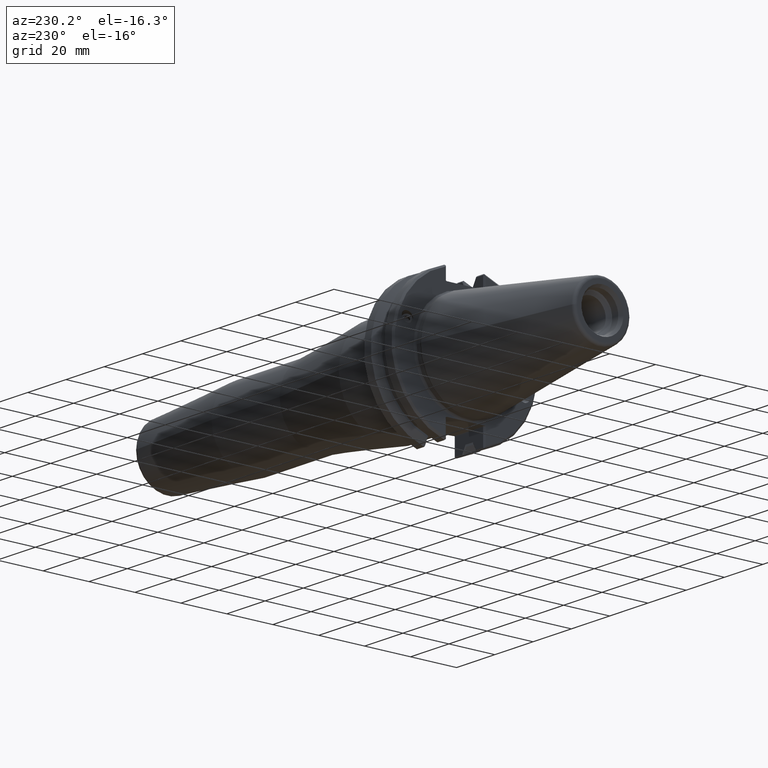
[diagram: clean part render]
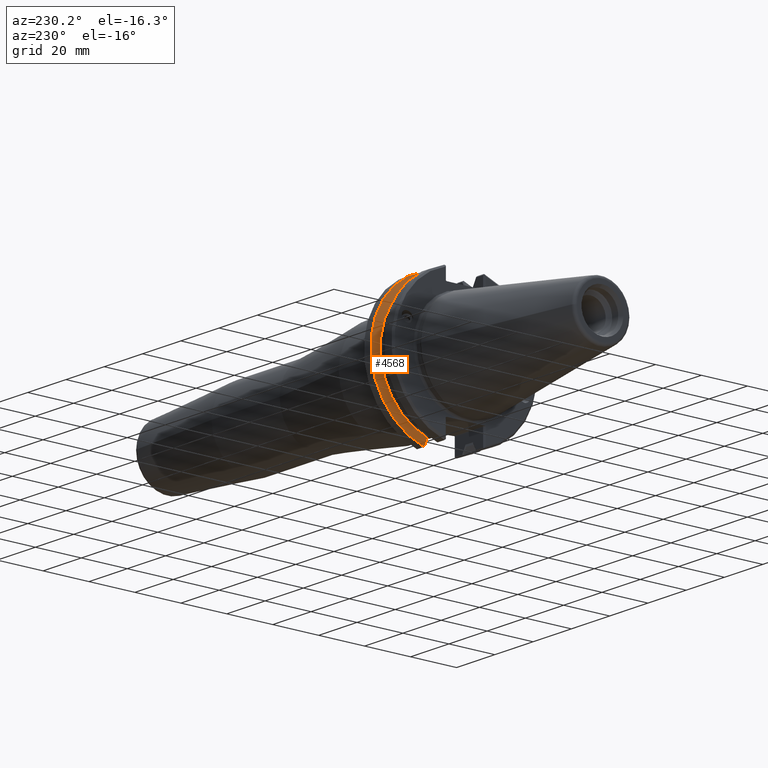
[diagram: same view with one face highlighted and labeled with its STEP entity id]
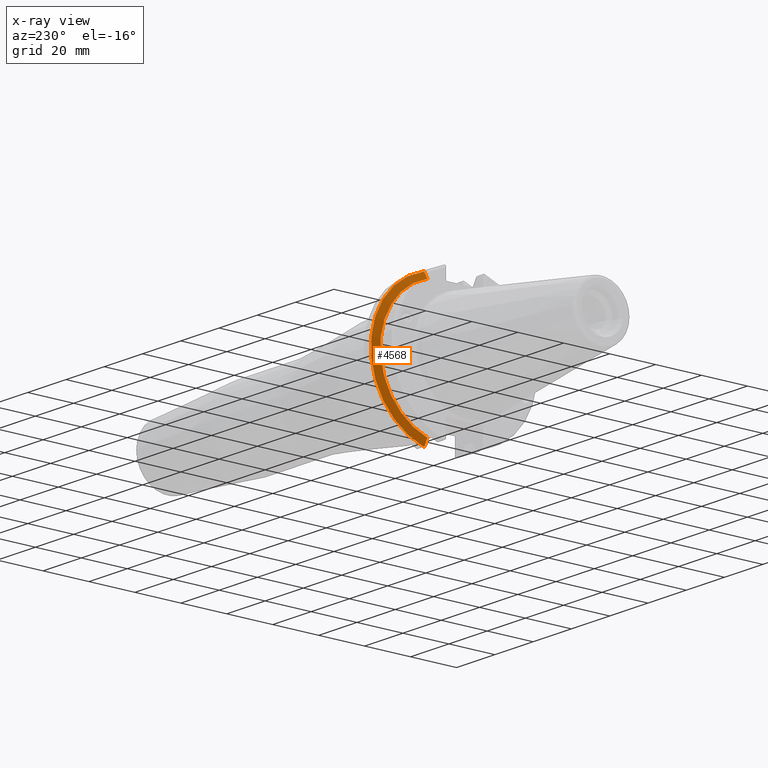
[diagram: x-ray of the same camera — body ghosted, the highlighted face saturated]
A machine part, auxiliary view. The second image highlights one B-rep face of the part: STEP entity #4568.
The next image is the same camera in x-ray: the body ghosted, the highlighted face saturated — about 0% of this face is hidden behind the body in this view.
In plain terms, the highlighted conical surface has half-angle 60 deg.
Its self-contained STEP definition (entity closure, byte-faithful):
#1130=CARTESIAN_POINT('',(14.660216354556951,8.626554713373395,-30.555605930453666));
#1131=VERTEX_POINT('',#1130);
#1138=CARTESIAN_POINT('',(14.660216354556951,8.626554713373386,30.555605930453666));
#1139=VERTEX_POINT('',#1138);
#1140=CARTESIAN_POINT('',(14.660216354556951,0.0,0.0));
#1141=DIRECTION('',(1.0,1.624514E-013,0.0));
#1142=DIRECTION('',(-1.624514E-013,1.0,0.0));
#1143=AXIS2_PLACEMENT_3D('',#1140,#1141,#1142);
#1144=CIRCLE('',#1143,31.750000000000000);
#1145=EDGE_CURVE('',#1131,#1139,#1144,.T.);
#1814=CARTESIAN_POINT('',(14.544091722932937,8.463425625241261,-30.392456096712323));
#1815=VERTEX_POINT('',#1814);
#1856=CARTESIAN_POINT('',(13.051789999522727,8.462002772180403,-27.700450872004421));
#1857=VERTEX_POINT('',#1856);
#1867=CARTESIAN_POINT('',(13.051789998835291,8.462002772016909,-27.700450872424739));
#1868=CARTESIAN_POINT('',(13.065816816280348,8.462013473377674,-27.725851088848145));
#1869=CARTESIAN_POINT('',(13.079844883125034,8.462024257716772,-27.751250569471267));
#1870=CARTESIAN_POINT('',(13.127402440379013,8.462061094522626,-27.837349092398661));
#1871=CARTESIAN_POINT('',(13.160937774719038,8.462087535366775,-27.898044693726515));
#1872=CARTESIAN_POINT('',(13.228224585542931,8.462141505129123,-28.019793641142886));
#1873=CARTESIAN_POINT('',(13.261976146739604,8.462169039683248,-28.080846937134829));
#1874=CARTESIAN_POINT('',(13.329697316756418,8.462225199855261,-28.203314731946612));
#1875=CARTESIAN_POINT('',(13.363667009475037,8.462253831067963,-28.264729181430621));
#1876=CARTESIAN_POINT('',(13.431826373285052,8.462312187597084,-28.387922785157617));
#1877=CARTESIAN_POINT('',(13.466016127476379,8.462341918477433,-28.449701890355751));
#1878=CARTESIAN_POINT('',(13.604060163826029,8.462463779160242,-28.699074315813498));
#1879=CARTESIAN_POINT('',(13.707970484976675,8.462559662653849,-28.886634617915366));
#1880=CARTESIAN_POINT('',(13.882322969722512,8.462727170438757,-29.201105756533980));
#1881=CARTESIAN_POINT('',(13.952732933144294,8.462796625645805,-29.328035578665379));
#1882=CARTESIAN_POINT('',(14.058714552887526,8.462903801797822,-29.518996804611778));
#1883=CARTESIAN_POINT('',(14.094266641151645,8.462940199917405,-29.583039750684510));
#1884=CARTESIAN_POINT('',(14.165605032929319,8.463014114277971,-29.711516061398846));
#1885=CARTESIAN_POINT('',(14.201391418522643,8.463051636072166,-29.775949377706283));
#1886=CARTESIAN_POINT('',(14.273200547156113,8.463127801649854,-29.905210281852288));
#1887=CARTESIAN_POINT('',(14.309223371688597,8.463166450969457,-29.970037821357533));
#1888=CARTESIAN_POINT('',(14.411510675269442,8.463277427413670,-30.154072514432158));
#1889=CARTESIAN_POINT('',(14.477790598008076,8.463350803919834,-30.273270556839574));
#1890=CARTESIAN_POINT('',(14.544091722932942,8.463425625241680,-30.392456096712227));
#1891=B_SPLINE_CURVE_WITH_KNOTS('',3,(#1867,#1868,#1869,#1870,#1871,#1872,#1873,#1874,#1875,#1876,#1877,#1878,#1879,#1880,#1881,#1882,#1883,#1884,#1885,#1886,#1887,#1888,#1889,#1890),.UNSPECIFIED.,.F.,.U.,(4,2,2,2,2,2,2,2,2,2,2,4),(-0.266790668117900,-0.258089161817484,-0.237293672558449,-0.216372800269911,-0.195325359856532,-0.174150151868467,-0.109845707832232,-0.066314583709057,-0.044346748746016,-0.022242328460205,0.0,0.040903700554940),.UNSPECIFIED.);
#1892=EDGE_CURVE('',#1857,#1815,#1891,.T.);
#1928=CARTESIAN_POINT('',(13.051789999906136,8.462002772083187,27.700450872381310));
#1929=VERTEX_POINT('',#1928);
#1939=CARTESIAN_POINT('',(13.051789999999379,7.664949E-012,0.0));
#1940=DIRECTION('',(-1.0,-1.624821E-013,0.0));
#1941=DIRECTION('',(-1.624821E-013,1.0,0.0));
#1942=AXIS2_PLACEMENT_3D('',#1939,#1940,#1941);
#1943=CIRCLE('',#1942,28.964123833674531);
#1944=EDGE_CURVE('',#1929,#1857,#1943,.T.);
#2817=CARTESIAN_POINT('',(14.544091722932935,8.463425625240813,30.392456096712444));
#2818=VERTEX_POINT('',#2817);
#2828=CARTESIAN_POINT('',(14.544091722932937,8.463425625240966,30.392456096712408));
#2829=CARTESIAN_POINT('',(14.477790598008012,8.463350803919129,30.273270556839648));
#2830=CARTESIAN_POINT('',(14.411510675269309,8.463277427412969,30.154072514432105));
#2831=CARTESIAN_POINT('',(14.309223371688997,8.463166450968769,29.970037821358439));
#2832=CARTESIAN_POINT('',(14.273200547157101,8.463127801649174,29.905210281854252));
#2833=CARTESIAN_POINT('',(14.201391418524707,8.463051636071491,29.775949377710184));
#2834=CARTESIAN_POINT('',(14.165605032931870,8.463014114277300,29.711516061403628));
#2835=CARTESIAN_POINT('',(14.094266641155073,8.462940199916744,29.583039750690872));
#2836=CARTESIAN_POINT('',(14.058714552891329,8.462903801797165,29.518996804618812));
#2837=CARTESIAN_POINT('',(13.952732933148930,8.462796625645165,29.328035578673919));
#2838=CARTESIAN_POINT('',(13.882322969727587,8.462727170438127,29.201105756543310));
#2839=CARTESIAN_POINT('',(13.707970484982051,8.462559662653241,28.886634617925232));
#2840=CARTESIAN_POINT('',(13.604060163831260,8.462463779159643,28.699074315823097));
#2841=CARTESIAN_POINT('',(13.466016127481197,8.462341918476845,28.449701890364597));
#2842=CARTESIAN_POINT('',(13.431826373289615,8.462312187596503,28.387922785166005));
#2843=CARTESIAN_POINT('',(13.363667009478966,8.462253831067388,28.264729181437861));
#2844=CARTESIAN_POINT('',(13.329697316759969,8.462225199854689,28.203314731953174));
#2845=CARTESIAN_POINT('',(13.261976146742315,8.462169039682694,28.080846937139874));
#2846=CARTESIAN_POINT('',(13.228224585545165,8.462141505128571,28.019793641147071));
#2847=CARTESIAN_POINT('',(13.160937774720219,8.462087535366244,27.898044693728803));
#2848=CARTESIAN_POINT('',(13.127402440379603,8.462061094522101,27.837349092399865));
#2849=CARTESIAN_POINT('',(13.079844883208043,8.462024257716317,27.751250569621686));
#2850=CARTESIAN_POINT('',(13.065816816446359,8.462013473377287,27.725851089148861));
#2851=CARTESIAN_POINT('',(13.051789999084287,8.462002772016586,27.700450872875763));
#2852=B_SPLINE_CURVE_WITH_KNOTS('',3,(#2828,#2829,#2830,#2831,#2832,#2833,#2834,#2835,#2836,#2837,#2838,#2839,#2840,#2841,#2842,#2843,#2844,#2845,#2846,#2847,#2848,#2849,#2850,#2851),.UNSPECIFIED.,.F.,.U.,(4,2,2,2,2,2,2,2,2,2,2,4),(-0.298992862372424,-0.258089161817446,-0.235846833357607,-0.213742413072099,-0.191774578109296,-0.148243453986395,-0.083939009950073,-0.062763801961847,-0.041716361548238,-0.020795489259403,0.0,0.008701506248927),.UNSPECIFIED.);
#2853=EDGE_CURVE('',#2818,#1929,#2852,.T.);
#2893=CARTESIAN_POINT('',(14.660216354565868,8.626554713389611,30.555605930469895));
#2894=CARTESIAN_POINT('',(14.601911287491511,8.544730995895995,30.473771807212099));
#2895=CARTESIAN_POINT('',(14.544091722932935,8.463425625240813,30.392456096712444));
#2903=(BOUNDED_CURVE()B_SPLINE_CURVE(2,(#2893,#2894,#2895),.UNSPECIFIED.,.F.,.U.)B_SPLINE_CURVE_WITH_KNOTS((3,3),(0.0,0.024670322092065),.UNSPECIFIED.)CURVE()GEOMETRIC_REPRESENTATION_ITEM()RATIONAL_B_SPLINE_CURVE((1.0,1.000097392485828,1.000181507033653))REPRESENTATION_ITEM(''));
#2904=EDGE_CURVE('',#1139,#2818,#2903,.T.);
#3994=CARTESIAN_POINT('',(14.544091722932937,8.463425625241261,-30.392456096712323));
#3995=CARTESIAN_POINT('',(14.601911287493399,8.544730995899100,-30.473771807214632));
#3996=CARTESIAN_POINT('',(14.660216354569629,8.626554713395345,-30.555605930475032));
#4004=(BOUNDED_CURVE()B_SPLINE_CURVE(2,(#3994,#3995,#3996),.UNSPECIFIED.,.F.,.U.)B_SPLINE_CURVE_WITH_KNOTS((3,3),(0.337238883119142,0.361909205211997),.UNSPECIFIED.)CURVE()GEOMETRIC_REPRESENTATION_ITEM()RATIONAL_B_SPLINE_CURVE((1.000181507033624,1.000097392485813,1.0))REPRESENTATION_ITEM(''));
#4005=EDGE_CURVE('',#1815,#1131,#4004,.T.);
#4555=CARTESIAN_POINT('',(15.186824415273922,8.011788E-012,0.0));
#4556=DIRECTION('',(1.0,1.624514E-013,0.0));
#4557=DIRECTION('',(-1.624821E-013,1.0,0.0));
#4558=AXIS2_PLACEMENT_3D('',#4555,#4556,#4557);
#4559=CONICAL_SURFACE('',#4558,32.662111916836764,59.999999999990706);
#4560=ORIENTED_EDGE('',*,*,#1892,.F.);
#4561=ORIENTED_EDGE('',*,*,#1944,.F.);
#4562=ORIENTED_EDGE('',*,*,#2853,.F.);
#4563=ORIENTED_EDGE('',*,*,#2904,.F.);
#4564=ORIENTED_EDGE('',*,*,#1145,.F.);
#4565=ORIENTED_EDGE('',*,*,#4005,.F.);
#4566=EDGE_LOOP('',(#4560,#4561,#4562,#4563,#4564,#4565));
#4567=FACE_OUTER_BOUND('',#4566,.T.);
#4568=ADVANCED_FACE('',(#4567),#4559,.T.);